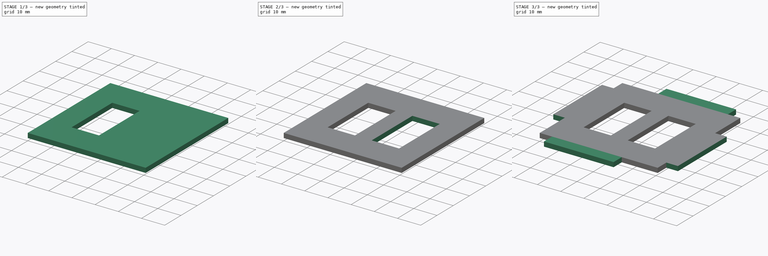
[diagram: build sequence overview — one tinted view per stage of 3, left to right]
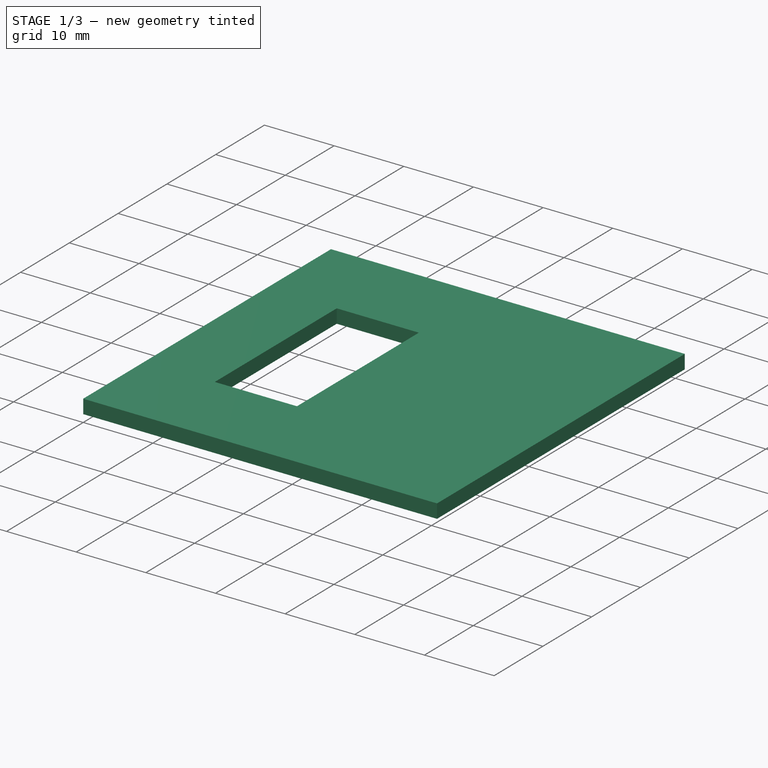
[diagram: stage 1 of 3 — iso view after this stage's code; geometry added in this stage tinted green]
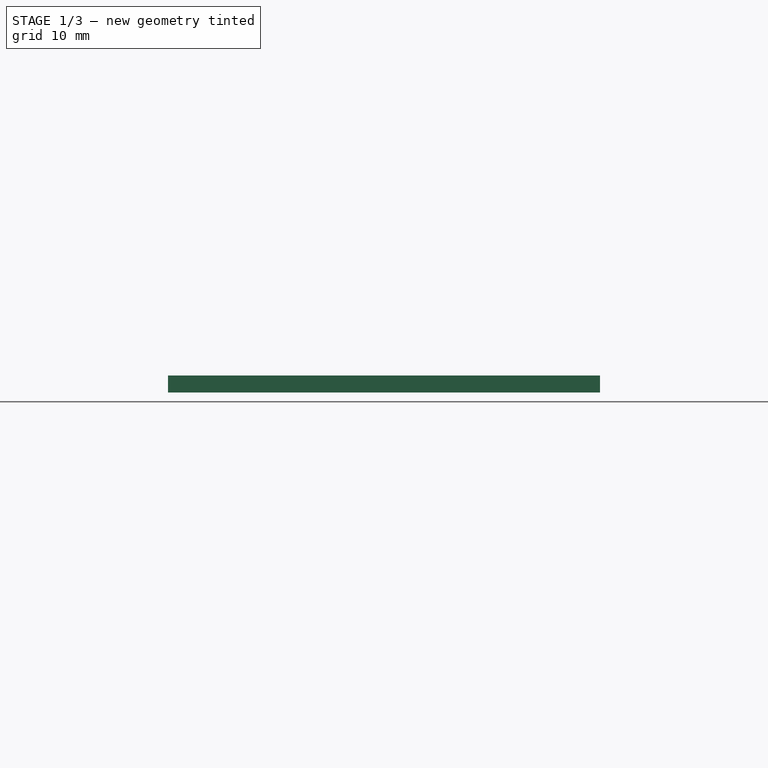
[diagram: stage 1 of 3 — front view after this stage's code; geometry added in this stage tinted green]
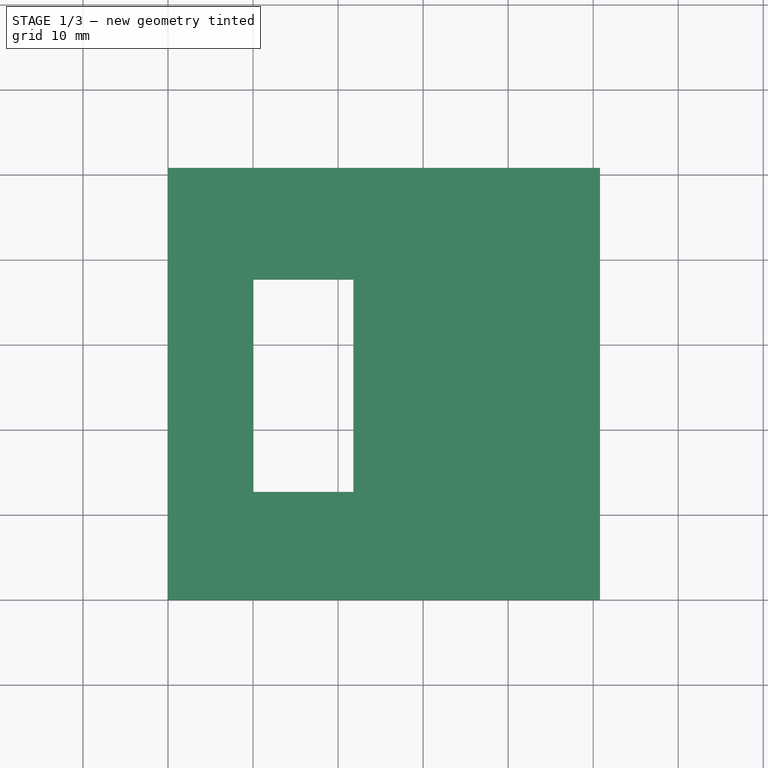
[diagram: stage 1 of 3 — top view after this stage's code; geometry added in this stage tinted green]
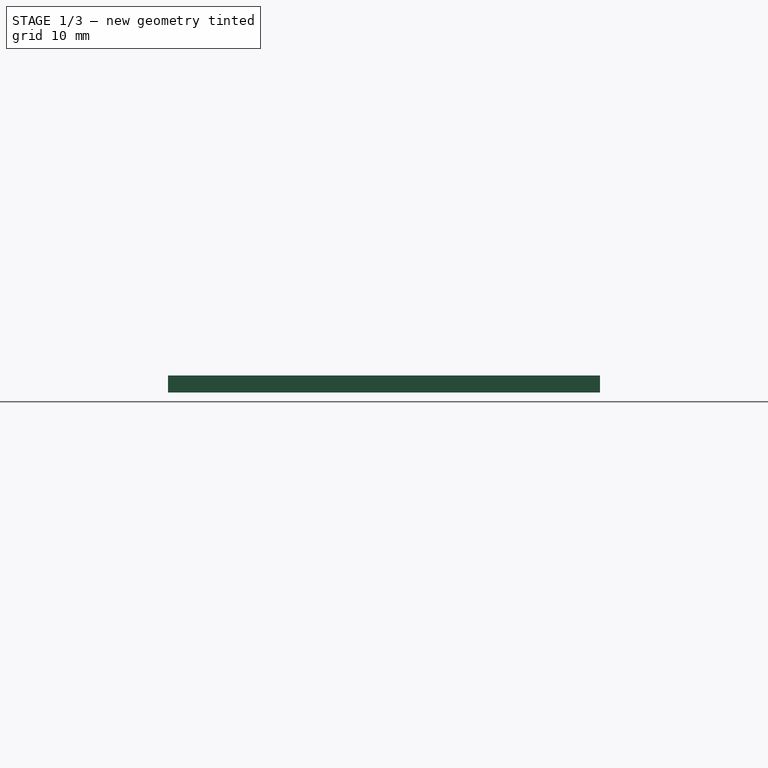
[diagram: stage 1 of 3 — right view after this stage's code; geometry added in this stage tinted green]
FCSTD DOCUMENT  (FreeCAD 0.18R16131 (Git))
Label: fuselage_servo_holder
License: All rights reserved
LicenseURL: http://en.wikipedia.org/wiki/All_rights_reserved
objects: Sketcher::SketchObject×5, PartDesign::Pad×2, PartDesign::Plane×2, PartDesign::Line×2, PartDesign::Pocket×1, PartDesign::Mirrored×1, PartDesign::PolarPattern×1, PartDesign::Body×1
note: 18 computed .brp shape members not serialized (recipe doc carries the construction recipe); baked Part::Feature solids carry a one-line shape summary decoded from their .brp

FEATURE [Sketcher::SketchObject] Sketch
  MapMode = 5
  Support = -> [XY_Plane]
  sketch-geometry (4):
    g0: LineSegment StartX=0 StartY=0 StartZ=0 EndX=50.8 EndY=0 EndZ=0
    g1: LineSegment StartX=50.8 StartY=0 StartZ=0 EndX=50.8 EndY=50.8 EndZ=0
    g2: LineSegment StartX=50.8 StartY=50.8 StartZ=0 EndX=0 EndY=50.8 EndZ=0
    g3: LineSegment StartX=0 StartY=50.8 StartZ=0 EndX=0 EndY=0 EndZ=0
  constraints (11):
    c: Coincident(g0,g1)
    c: Coincident(g1,g2)
    c: Coincident(g2,g3)
    c: Coincident(g3,g0)
    c: Horizontal(g0)
    c: Horizontal(g2)
    c: Vertical(g1)
    c: Vertical(g3)
    c: Coincident(g0,g-1)
    c: DistanceX(g2,g2) = 50.8
    c: Equal(g2,g1)
FEATURE [PartDesign::Pad] Pad
  Length = 2
  Length2 = 100
  Profile = -> Sketch
  Refine = true
  Type = 0
FEATURE [Sketcher::SketchObject] Sketch001
  ExternalGeometry = -> [Pad]
  MapMode = 5
  Placement = pos=(0,0,2) rot=(0,0,1;0rad)
  Support = -> [Pad]
  sketch-geometry (5):
    g0: LineSegment [constr] StartX=25.4 StartY=50.8 StartZ=0 EndX=25.4 EndY=0 EndZ=0
    g1: LineSegment StartX=10 StartY=37.7 StartZ=0 EndX=21.8 EndY=37.7 EndZ=0
    g2: LineSegment StartX=21.8 StartY=37.7 StartZ=0 EndX=21.8 EndY=12.7 EndZ=0
    g3: LineSegment StartX=21.8 StartY=12.7 StartZ=0 EndX=10 EndY=12.7 EndZ=0
    g4: LineSegment StartX=10 StartY=12.7 StartZ=0 EndX=10 EndY=37.7 EndZ=0
  constraints (16):
    c: Vertical(g0)
    c: PointOnObject(g0,g-4)
    c: PointOnObject(g0,g-3)
    c: DistanceX(g-3,g0) = 25.4
    c: Coincident(g1,g2)
    c: Coincident(g2,g3)
    c: Coincident(g3,g4)
    c: Coincident(g4,g1)
    c: Horizontal(g1)
    c: Horizontal(g3)
    c: Vertical(g2)
    c: Vertical(g4)
    c: Distance(g3) = 11.8
    c: Distance(g4) = 25
    c: DistanceY(g0,g2) = 12.7
    c: DistanceX(g-1,g3) = 10
FEATURE [PartDesign::Pocket] Pocket
  BaseFeature = -> Pad
  Length = 0
  Length2 = 100
  Profile = -> Sketch001
  Refine = true
  Type = 3
  UpToFace = -> Pad [Face5]
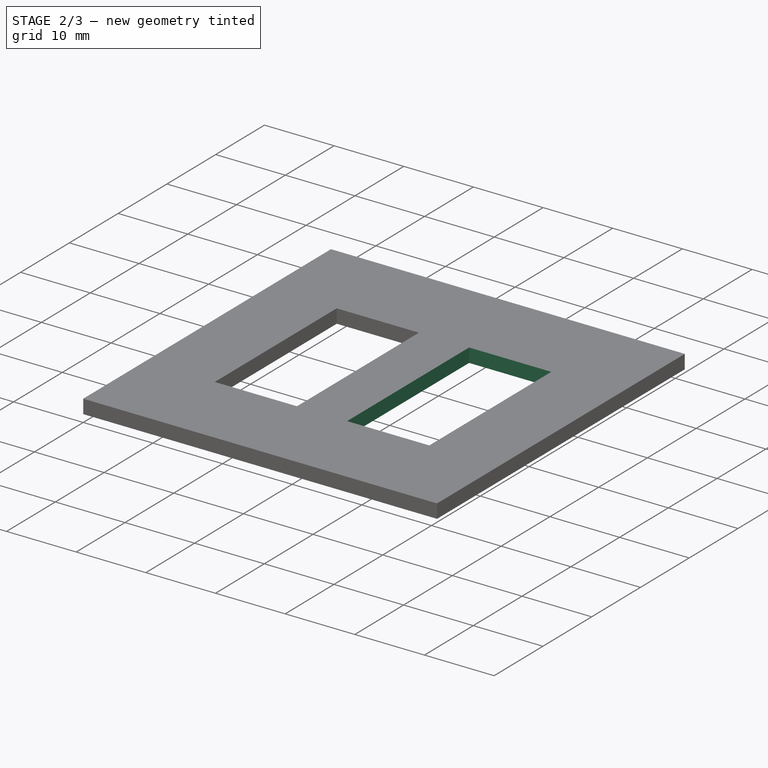
[diagram: stage 2 of 3 — iso view after this stage's code; geometry added in this stage tinted green]
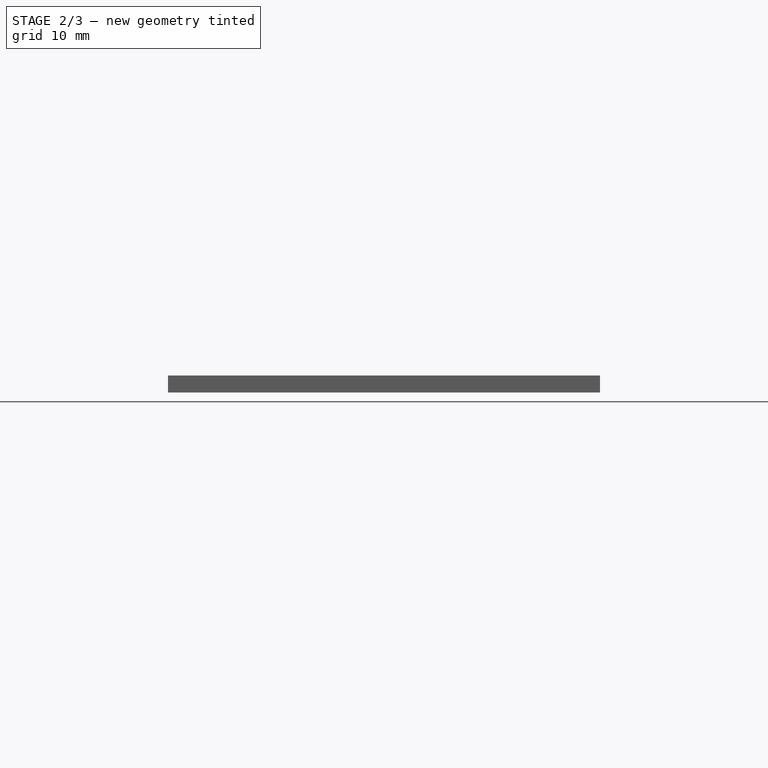
[diagram: stage 2 of 3 — front view after this stage's code; geometry added in this stage tinted green]
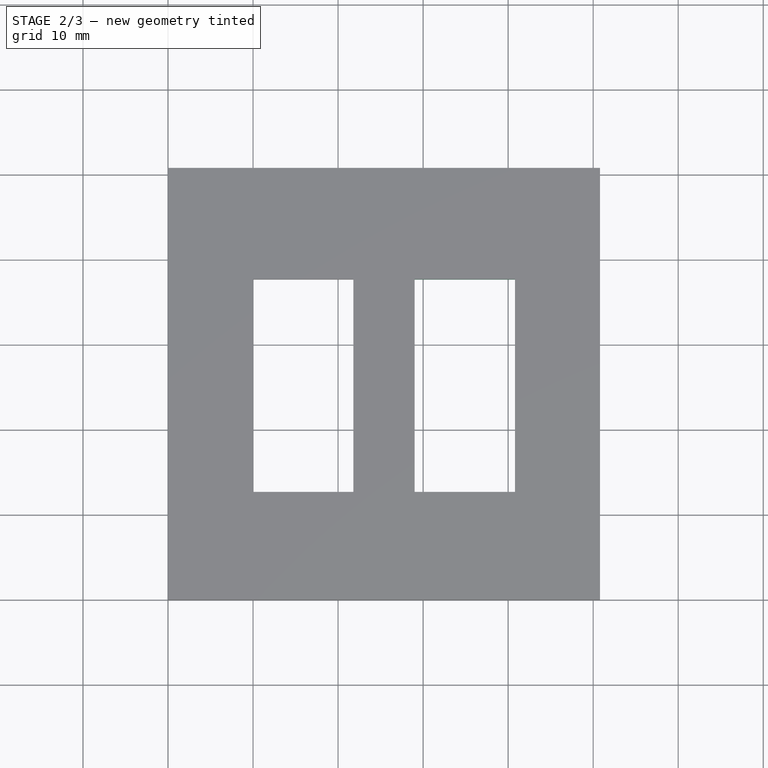
[diagram: stage 2 of 3 — top view after this stage's code; geometry added in this stage tinted green]
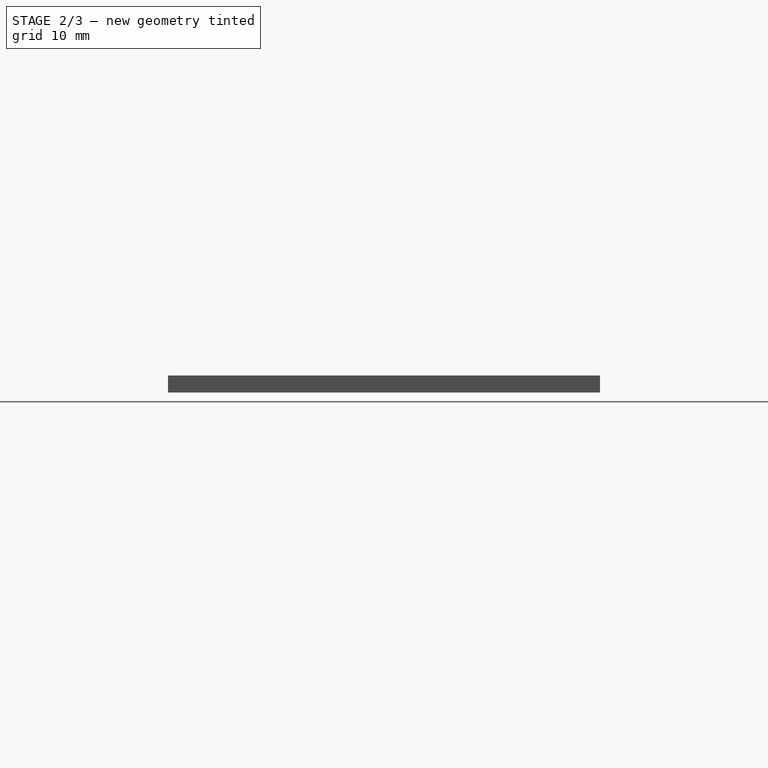
[diagram: stage 2 of 3 — right view after this stage's code; geometry added in this stage tinted green]
FEATURE [PartDesign::Mirrored] Mirrored
  BaseFeature = -> Pocket
  MirrorPlane = -> Sketch001 [Axis0]
  Originals = -> [Pocket]
  Refine = true
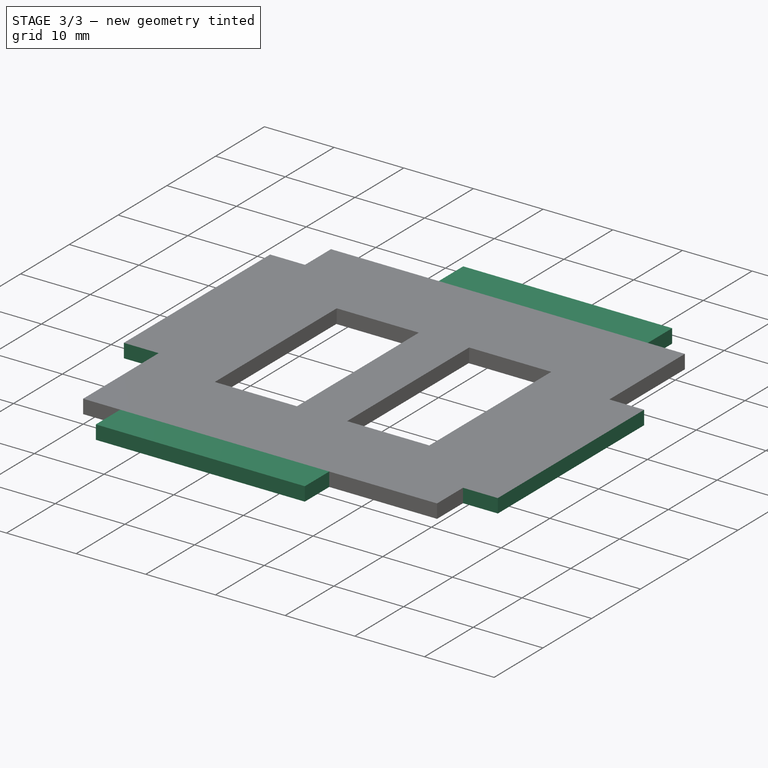
[diagram: stage 3 of 3 — iso view after this stage's code; geometry added in this stage tinted green]
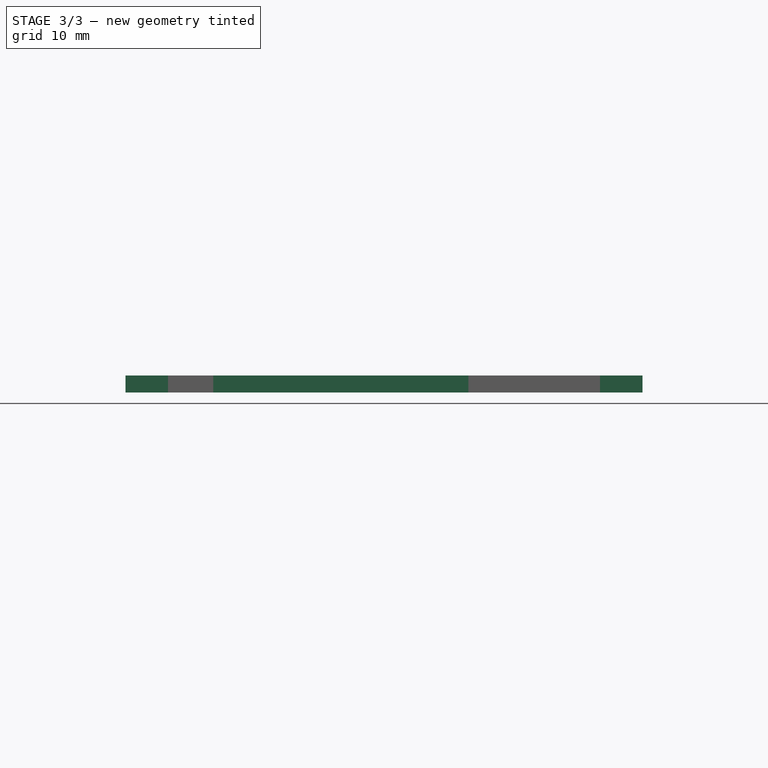
[diagram: stage 3 of 3 — front view after this stage's code; geometry added in this stage tinted green]
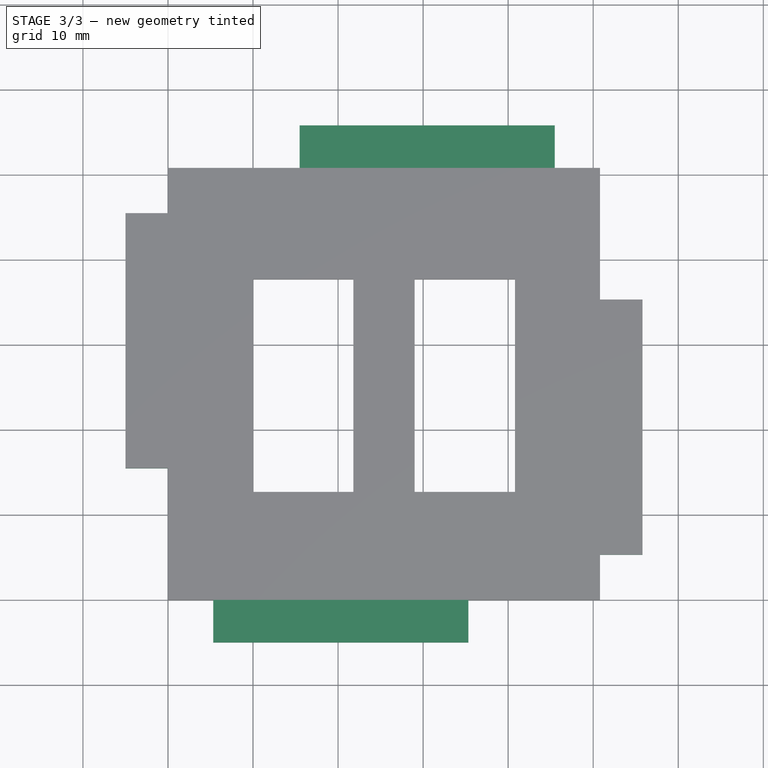
[diagram: stage 3 of 3 — top view after this stage's code; geometry added in this stage tinted green]
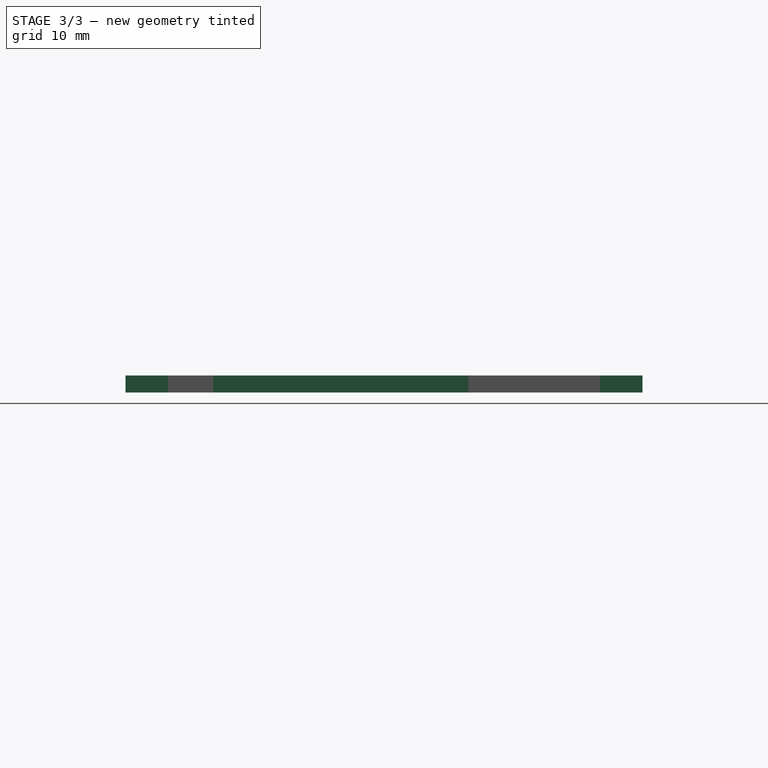
[diagram: stage 3 of 3 — right view after this stage's code; geometry added in this stage tinted green]
FEATURE [Sketcher::SketchObject] Sketch002
  ExternalGeometry = -> [Mirrored]
  MapMode = 5
  Placement = pos=(50.8,0,0) rot=(0.57735,0.57735,0.57735;2.0944rad)
  Support = -> [Mirrored]
  sketch-geometry (5):
    g0: LineSegment [constr] StartX=20.32 StartY=2 StartZ=0 EndX=20.32 EndY=0 EndZ=0
    g1: LineSegment StartX=5.32 StartY=2 StartZ=0 EndX=35.32 EndY=2 EndZ=0
    g2: LineSegment StartX=35.32 StartY=2 StartZ=0 EndX=35.32 EndY=0 EndZ=0
    g3: LineSegment StartX=35.32 StartY=0 StartZ=0 EndX=5.32 EndY=0 EndZ=0
    g4: LineSegment StartX=5.32 StartY=0 StartZ=0 EndX=5.32 EndY=2 EndZ=0
  constraints (16):
    c: Vertical(g0)
    c: PointOnObject(g0,g-4)
    c: PointOnObject(g0,g-3)
    c: DistanceX(g0,g-3) = 30.48
    c: Coincident(g1,g2)
    c: Coincident(g2,g3)
    c: Coincident(g3,g4)
    c: Coincident(g4,g1)
    c: Horizontal(g1)
    c: Horizontal(g3)
    c: Vertical(g2)
    c: Vertical(g4)
    c: DistanceX(g1,g1) = 30
    c: DistanceY(g4,g4) = 2
    c: DistanceX(g0,g1) = 15
    c: PointOnObject(g3,g-4)
FEATURE [PartDesign::Pad] Pad001
  BaseFeature = -> Mirrored
  Length = 5
  Length2 = 100
  Profile = -> Sketch002
  Refine = true
  Type = 0
FEATURE [Sketcher::SketchObject] Sketch003
  ExternalGeometry = -> [Pad001]
  MapMode = 5
  Placement = pos=(0,50.8,0) rot=(0,0.707107,0.707107;3.14159rad)
  Support = -> [Pad001]
  sketch-geometry (1):
    g0: LineSegment [constr] StartX=-17.7 StartY=2 StartZ=0 EndX=-17.7 EndY=2 EndZ=0
  constraints (4):
    c: Vertical(g0)
    c: PointOnObject(g0,g-4)
    c: PointOnObject(g0,g-3)
    c: DistanceX(g-3,g0) = 38.1
FEATURE [PartDesign::Plane] DatumPlane
  AttachmentOffset = pos=(0,1,-25.4) rot=(0,0,1;0rad)
  Length = 74.2299
  MapMode = 5
  Placement = pos=(25.4,0,1) rot=(0.57735,0.57735,0.57735;2.0944rad)
  ResizeMode = 0
  Support = -> [Pad001]
  Width = 35.4299
FEATURE [PartDesign::Plane] DatumPlane001
  AttachmentOffset = pos=(0,0,-25.4) rot=(0,0,1;0rad)
  Length = 74.2299
  MapMode = 5
  Placement = pos=(0,25.4,-5.6e-15) rot=(1,0,0;1.5708rad)
  ResizeMode = 0
  Width = 35.4299
FEATURE [Sketcher::SketchObject] Sketch004
  ExternalGeometry = -> [DatumPlane,Pad001]
  MapMode = 5
  Placement = pos=(0,25.4,-5.6e-15) rot=(1,0,0;1.5708rad)
  Support = -> [DatumPlane001]
  sketch-geometry (1):
    g0: LineSegment StartX=25.4 StartY=17 StartZ=0 EndX=25.4 EndY=2 EndZ=0
  constraints (4):
    c: Vertical(g0)
    c: PointOnObject(g0,g-4)
    c: PointOnObject(g0,g-3)
    c: DistanceY(g0,g0) = 15
FEATURE [PartDesign::Line] DatumLine
  AttacherType = Attacher::AttachEngineLine
  MapMode = 42
  Placement = pos=(0,25.2,1) rot=(0.57735,0.57735,0.57735;2.0944rad)
FEATURE [PartDesign::Line] DatumLine001
  AttacherType = Attacher::AttachEngineLine
  MapMode = 29
  Placement = pos=(25.4,25.4,-7.1e-15) rot=(0,1,0;3.14159rad)
  Support = -> [Sketch004]
FEATURE [PartDesign::PolarPattern] PolarPattern
  Angle = 360
  Axis = -> DatumLine001
  BaseFeature = -> Pad001
  Occurrences = 4
  Originals = -> [Pad001]
  Refine = true
FEATURE [PartDesign::Body] Body
  Group = -> [Sketch,Pad,Sketch001,Pocket,Mirrored,Sketch002,Pad001,Sketch003,DatumPlane,DatumPlane001,Sketch004,DatumLine,DatumLine001,PolarPattern]
  Origin = -> Origin
  Tip = -> PolarPattern
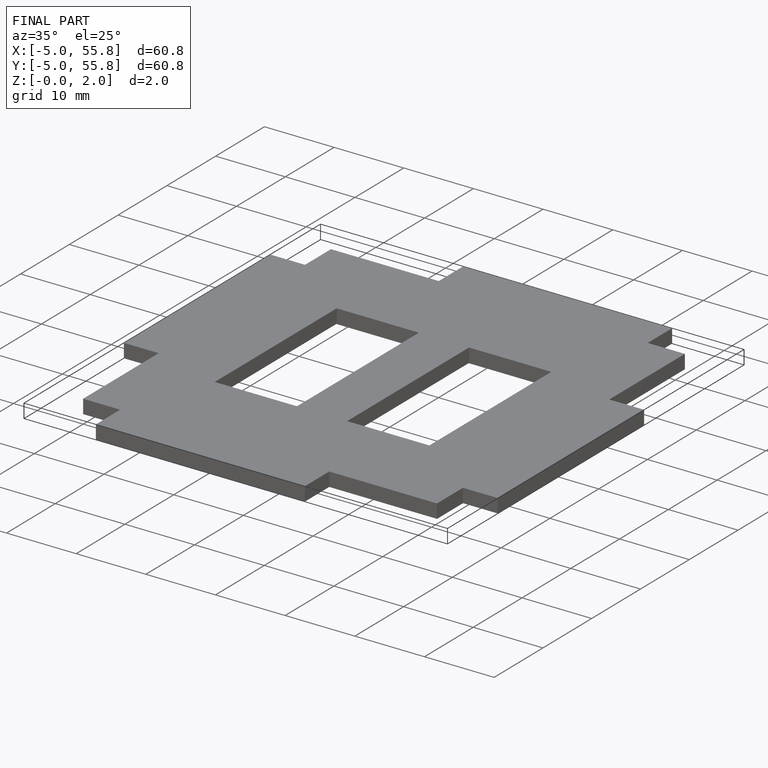
[diagram: finished part — iso view with bounding-box wireframe]
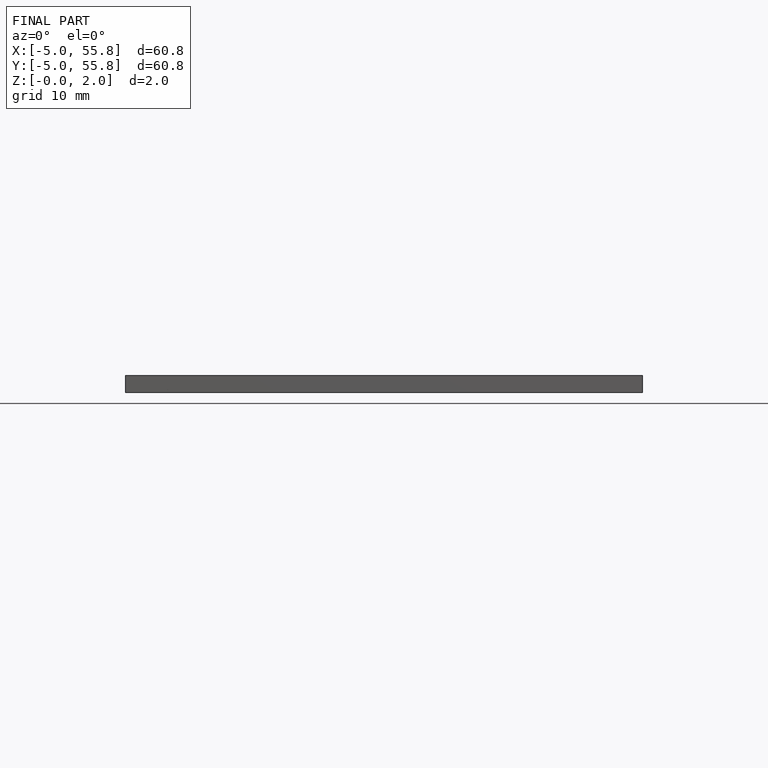
[diagram: finished part — front view with bounding-box wireframe]
